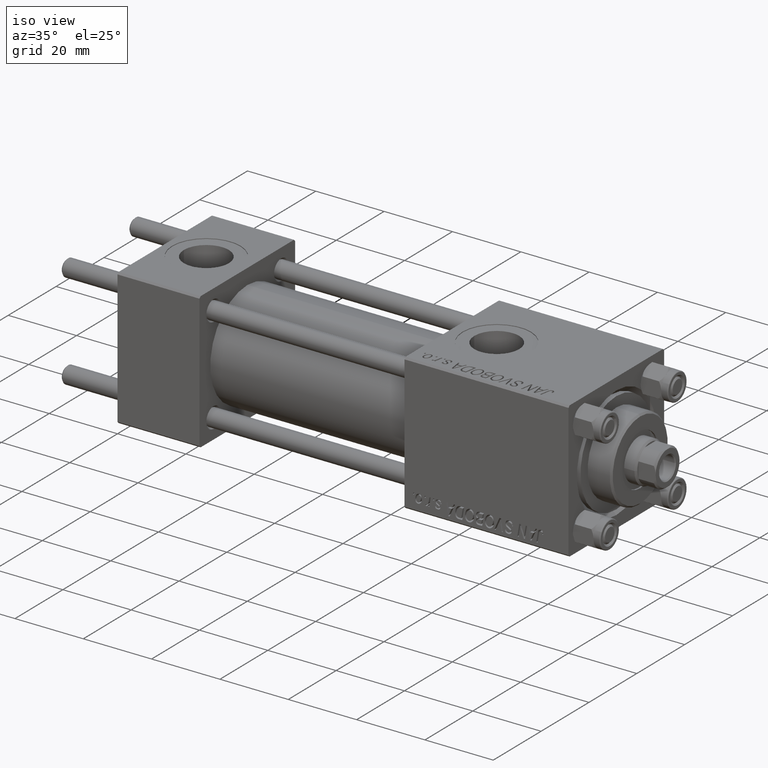
[diagram: clean part render]
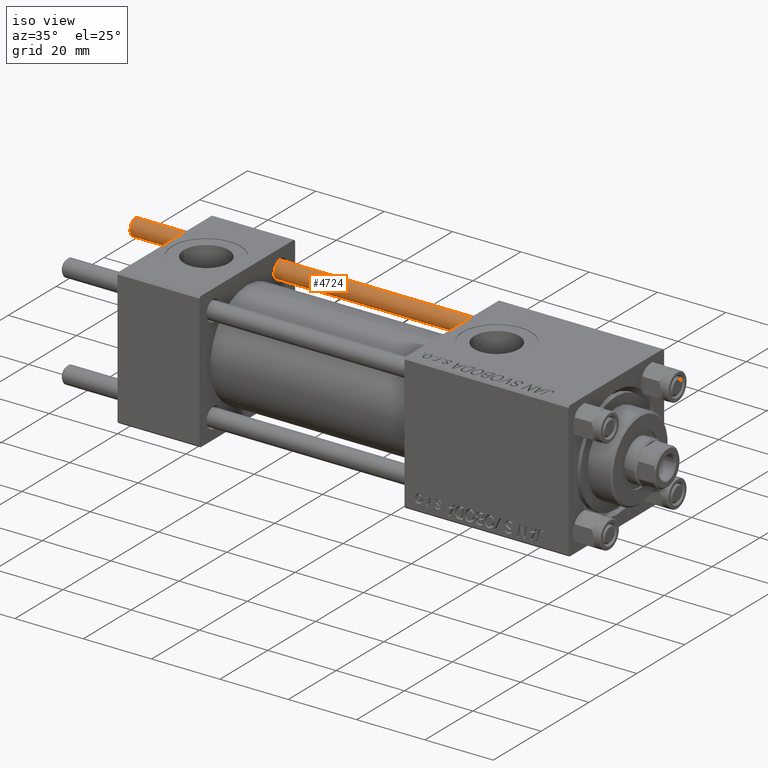
[diagram: same view with one face highlighted and labeled with its STEP entity id]
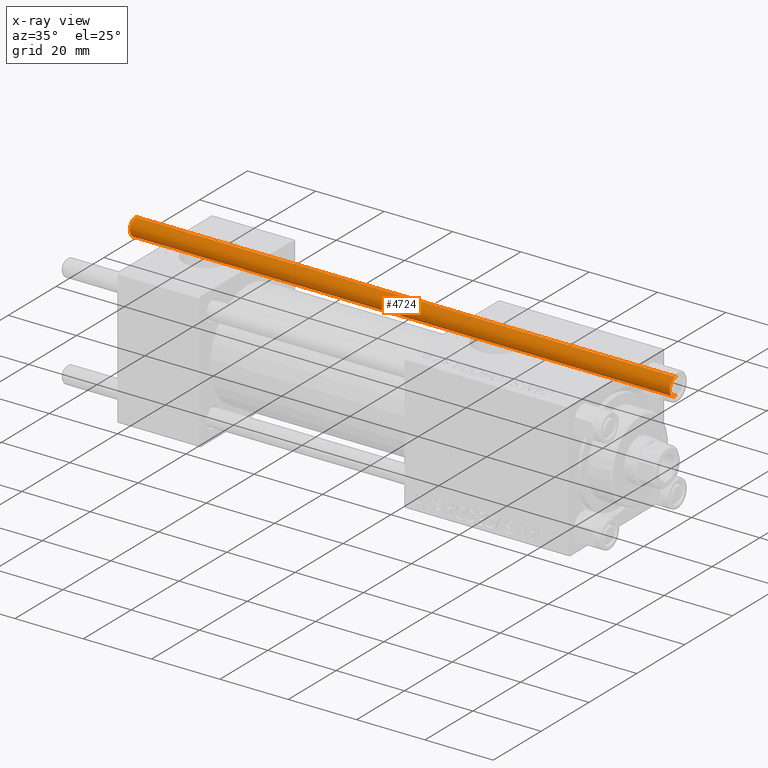
[diagram: x-ray of the same camera — body ghosted, the highlighted face saturated]
A machine part, iso view. The second image highlights one B-rep face of the part: STEP entity #4724.
The next image is the same camera in x-ray: the body ghosted, the highlighted face saturated — about 0% of this face is hidden behind the body in this view.
In plain terms, the highlighted cylindrical surface (edge-blend (fillet) strip) has radius 2.5 mm, axis along (-1, -0, -0).
Its self-contained STEP definition (entity closure, byte-faithful):
#1527 = LINE ( 'NONE', #38633, #16170 ) ;
#2075 = VERTEX_POINT ( 'NONE', #38863 ) ;
#3250 = ORIENTED_EDGE ( 'NONE', *, *, #14430, .T. ) ;
#3394 = CYLINDRICAL_SURFACE ( 'NONE', #35446, 2.500000000000000000 ) ;
#4620 = DIRECTION ( 'NONE',  ( 1.000000000000000000, 0.000000000000000000, 0.000000000000000000 ) ) ;
#4724 = ADVANCED_FACE ( 'NONE', ( #22027 ), #3394, .T. ) ;
#5111 = ORIENTED_EDGE ( 'NONE', *, *, #16705, .T. ) ;
#5146 = LINE ( 'NONE', #19502, #19325 ) ;
#6144 = EDGE_CURVE ( 'NONE', #2075, #37015, #1527, .T. ) ;
#8096 = DIRECTION ( 'NONE',  ( 1.000000000000000000, 0.000000000000000000, 0.000000000000000000 ) ) ;
#11635 = CIRCLE ( 'NONE', #26123, 2.500000000000000000 ) ;
#12613 = ORIENTED_EDGE ( 'NONE', *, *, #32329, .T. ) ;
#13035 = CARTESIAN_POINT ( 'NONE',  ( 0.000000000000000000, 0.000000000000000000, 159.0000000000000000 ) ) ;
#14116 = CARTESIAN_POINT ( 'NONE',  ( -2.500000000000000000, 0.000000000000000000, 0.5000000000001114664 ) ) ;
#14223 = DIRECTION ( 'NONE',  ( -1.000000000000000000, 0.000000000000000000, 0.000000000000000000 ) ) ;
#14430 = EDGE_CURVE ( 'NONE', #34331, #37015, #11635, .T. ) ;
#15695 = DIRECTION ( 'NONE',  ( 0.000000000000000000, 0.000000000000000000, -1.000000000000000000 ) ) ;
#16170 = VECTOR ( 'NONE', #35772, 1000.000000000000000 ) ;
#16705 = EDGE_CURVE ( 'NONE', #2075, #39855, #31780, .T. ) ;
#17360 = CARTESIAN_POINT ( 'NONE',  ( 2.500000000000000000, 3.061616997868382648E-16, 0.5000000000001114664 ) ) ;
#19325 = VECTOR ( 'NONE', #23543, 1000.000000000000000 ) ;
#19502 = CARTESIAN_POINT ( 'NONE',  ( -2.500000000000000000, 0.000000000000000000, 159.0000000000000000 ) ) ;
#20123 = CARTESIAN_POINT ( 'NONE',  ( -2.500000000000000000, 0.000000000000000000, 158.5000000000001137 ) ) ;
#22027 = FACE_OUTER_BOUND ( 'NONE', #26480, .T. ) ;
#23543 = DIRECTION ( 'NONE',  ( -0.000000000000000000, -0.000000000000000000, -1.000000000000000000 ) ) ;
#23708 = CARTESIAN_POINT ( 'NONE',  ( 0.000000000000000000, 0.000000000000000000, 0.5000000000001114664 ) ) ;
#26123 = AXIS2_PLACEMENT_3D ( 'NONE', #23708, #46116, #8096 ) ;
#26480 = EDGE_LOOP ( 'NONE', ( #30854, #5111, #12613, #3250 ) ) ;
#30854 = ORIENTED_EDGE ( 'NONE', *, *, #6144, .F. ) ;
#31780 = CIRCLE ( 'NONE', #43067, 2.500000000000000000 ) ;
#32329 = EDGE_CURVE ( 'NONE', #39855, #34331, #5146, .T. ) ;
#34331 = VERTEX_POINT ( 'NONE', #14116 ) ;
#35446 = AXIS2_PLACEMENT_3D ( 'NONE', #13035, #40231, #14223 ) ;
#35772 = DIRECTION ( 'NONE',  ( -0.000000000000000000, -0.000000000000000000, -1.000000000000000000 ) ) ;
#37015 = VERTEX_POINT ( 'NONE', #17360 ) ;
#38633 = CARTESIAN_POINT ( 'NONE',  ( 2.500000000000000000, 3.061616997868382648E-16, 159.0000000000000000 ) ) ;
#38863 = CARTESIAN_POINT ( 'NONE',  ( 2.500000000000000000, 3.061616997868382648E-16, 158.5000000000001137 ) ) ;
#39855 = VERTEX_POINT ( 'NONE', #20123 ) ;
#40231 = DIRECTION ( 'NONE',  ( -0.000000000000000000, -0.000000000000000000, -1.000000000000000000 ) ) ;
#43067 = AXIS2_PLACEMENT_3D ( 'NONE', #43131, #15695, #4620 ) ;
#43131 = CARTESIAN_POINT ( 'NONE',  ( 0.000000000000000000, 0.000000000000000000, 158.5000000000001137 ) ) ;
#46116 = DIRECTION ( 'NONE',  ( -0.000000000000000000, -0.000000000000000000, 1.000000000000000000 ) ) ;